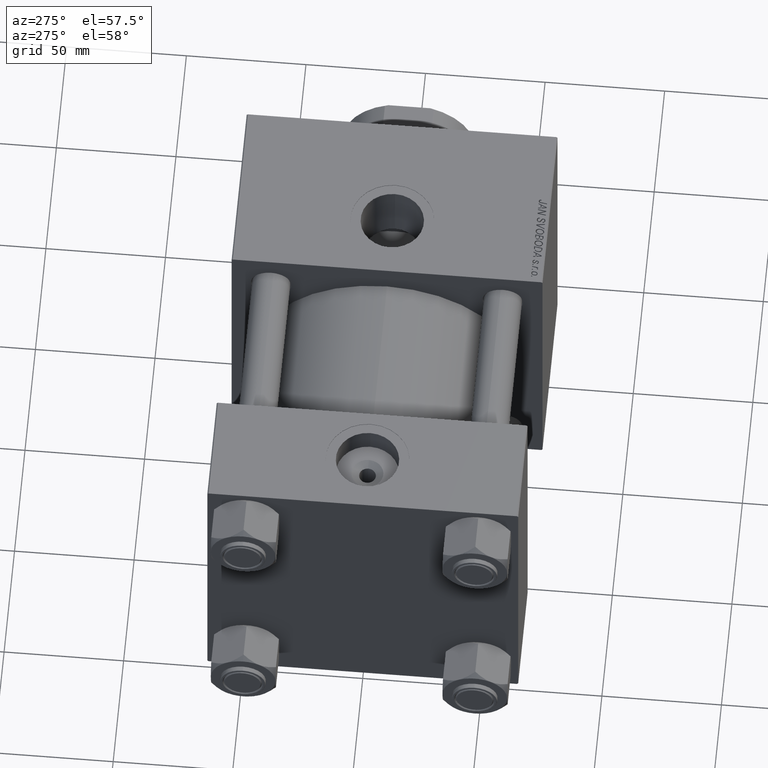
[diagram: clean part render]
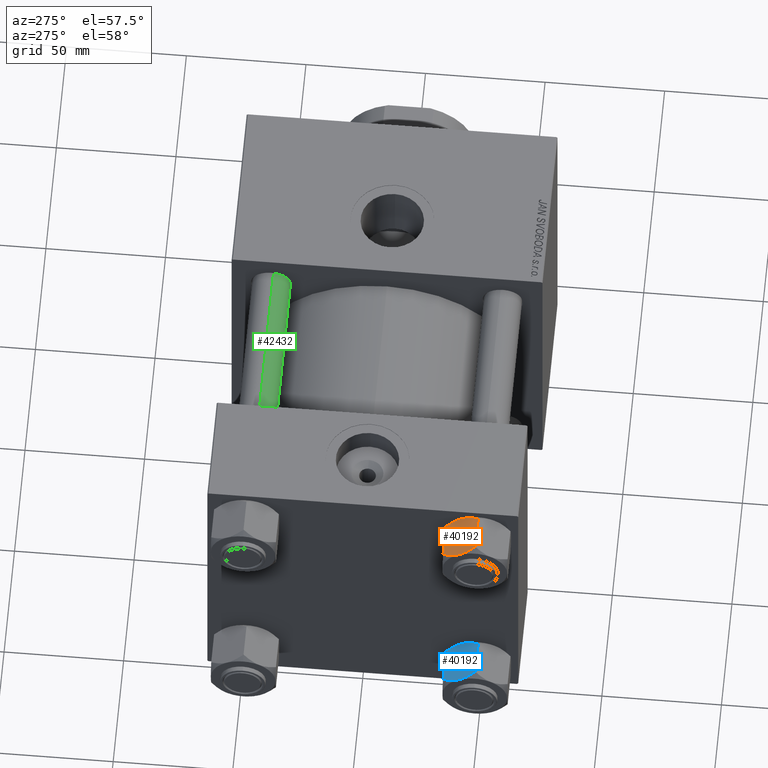
[diagram: same view with three faces highlighted in distinct colors, each labeled with its STEP entity id]
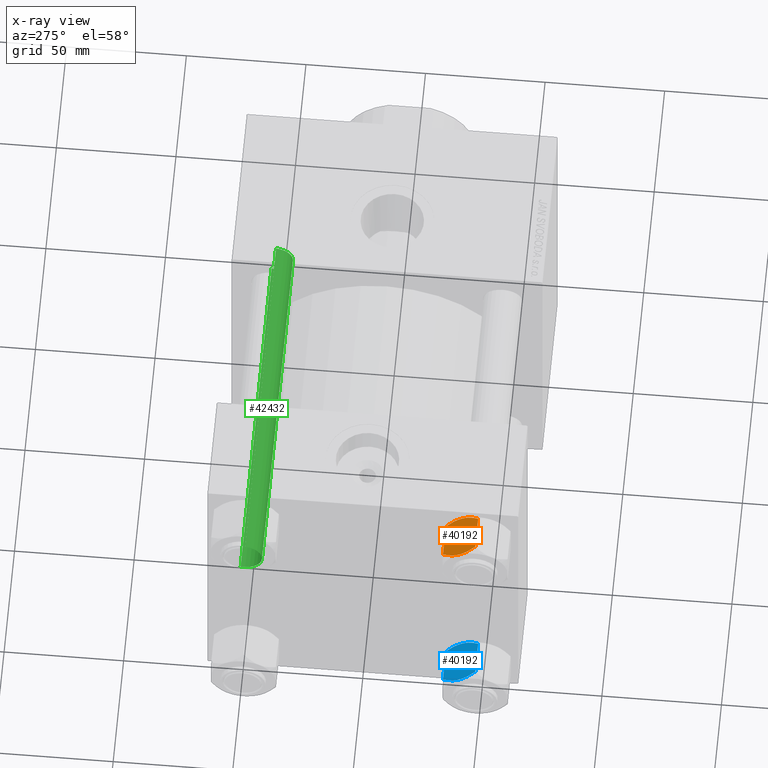
[diagram: x-ray of the same camera — body ghosted, the three highlighted faces saturated]
A machine part, auxiliary view with three faces highlighted in distinct colors.
The next image is the same camera in x-ray (body ghosted, the three faces saturated) — at least one of them is partly hidden behind the body in this view.
Their STEP definitions:

[orange] entity #40192 — the highlighted planar face has unit normal (-0, -0.5, -0.866).
#537 = DIRECTION ( 'NONE',  ( 0.4999999999999994449, -0.8660254037844390407, 0.000000000000000000 ) ) ;
#846 = EDGE_CURVE ( 'NONE', #49094, #23550, #19494, .T. ) ;
#1621 = B_SPLINE_CURVE_WITH_KNOTS ( 'NONE', 3,
 ( #35113, #43847, #47704, #38976, #35634, #47438, #19736, #20244 ),
 .UNSPECIFIED., .F., .F.,
 ( 4, 2, 2, 4 ),
 ( 0.007890825462474411814, 0.01181022244528552416, 0.01376992093669107860, 0.01572961942809663477 ),
 .UNSPECIFIED. ) ;
#1979 = ORIENTED_EDGE ( 'NONE', *, *, #33604, .F. ) ;
#2148 = CARTESIAN_POINT ( 'NONE',  ( -10.40215497533437805, -9.037572688741340343, -0.1971866459924474513 ) ) ;
#2179 = CARTESIAN_POINT ( 'NONE',  ( -11.71500000000000874, -6.763658403556459753, 0.000000000000000000 ) ) ;
#2950 = CARTESIAN_POINT ( 'NONE',  ( -7.903528262322684128, -13.36532110482641400, -16.00000000000000000 ) ) ;
#3744 = EDGE_CURVE ( 'NONE', #47865, #6500, #18803, .T. ) ;
#4026 = DIRECTION ( 'NONE',  ( 0.8660254037844390407, 0.4999999999999994449, 0.000000000000000000 ) ) ;
#4099 = DIRECTION ( 'NONE',  ( -0.4999999999999994449, 0.8660254037844390407, 0.000000000000000000 ) ) ;
#4546 = CARTESIAN_POINT ( 'NONE',  ( -7.809999999999999609, -13.52731680711293727, -18.00000000000000000 ) ) ;
#5118 = CARTESIAN_POINT ( 'NONE',  ( -15.61999999999999567, 8.023367828467702033E-15, -1.999999999999998224 ) ) ;
#5462 = CARTESIAN_POINT ( 'NONE',  ( -11.38181071908714515, -7.340759166634855504, -17.99999999999998934 ) ) ;
#6025 = CARTESIAN_POINT ( 'NONE',  ( -14.31545111198821552, -2.259544954993873311, -0.9142282604026915616 ) ) ;
#6079 = CARTESIAN_POINT ( 'NONE',  ( -7.809999999999999609, -13.52731680711293727, -16.00000000000000000 ) ) ;
#6268 = EDGE_CURVE ( 'NONE', #46447, #21157, #21612, .T. ) ;
#6500 = VERTEX_POINT ( 'NONE', #13372 ) ;
#6749 = CARTESIAN_POINT ( 'NONE',  ( -11.71500000000000874, -6.763658403556459753, 0.000000000000000000 ) ) ;
#7506 = DIRECTION ( 'NONE',  ( -0.000000000000000000, -0.000000000000000000, 1.000000000000000000 ) ) ;
#7761 = CARTESIAN_POINT ( 'NONE',  ( -8.202637790192643052, -12.84724820552771085, -1.706311779141444829 ) ) ;
#8373 = VECTOR ( 'NONE', #27476, 999.9999999999998863 ) ;
#9622 = CARTESIAN_POINT ( 'NONE',  ( -13.36540581434588226, -3.905071680002305534, -0.3836066851120543686 ) ) ;
#9625 = CARTESIAN_POINT ( 'NONE',  ( -15.61999999999999567, 8.023367828467702033E-15, -18.00000000000000000 ) ) ;
#10125 = CARTESIAN_POINT ( 'NONE',  ( -12.38621571200405391, -5.601078687526916511, -0.05089381635300645190 ) ) ;
#10126 = CARTESIAN_POINT ( 'NONE',  ( -15.61999999999999567, 8.023367828467702033E-15, -16.00000000000000000 ) ) ;
#10353 = VERTEX_POINT ( 'NONE', #10676 ) ;
#10676 = CARTESIAN_POINT ( 'NONE',  ( -11.71499999999999986, -6.763658403556454424, -18.00000000000000000 ) ) ;
#12332 = VERTEX_POINT ( 'NONE', #2950 ) ;
#12594 = LINE ( 'NONE', #35680, #18323 ) ;
#13372 = CARTESIAN_POINT ( 'NONE',  ( -7.809999999999999609, -13.52731680711293727, -1.999999999999998224 ) ) ;
#15117 = ORIENTED_EDGE ( 'NONE', *, *, #27372, .F. ) ;
#17274 = CARTESIAN_POINT ( 'NONE',  ( -11.04378428799595291, -7.926238119585994113, -17.94910618364698252 ) ) ;
#17466 = EDGE_CURVE ( 'NONE', #41054, #46447, #28473, .T. ) ;
#17562 = CARTESIAN_POINT ( 'NONE',  ( -9.439480280627259745, -10.70497417113492311, -0.7317196846281081024 ) ) ;
#17767 = CARTESIAN_POINT ( 'NONE',  ( -11.71499999999999986, -6.763658403556454424, -18.00000000000000000 ) ) ;
#18025 = B_SPLINE_CURVE_WITH_KNOTS ( 'NONE', 3,
 ( #40862, #28818, #48815, #25207, #45223, #17274, #5462, #17767 ),
 .UNSPECIFIED., .F., .F.,
 ( 4, 2, 2, 4 ),
 ( 4.472842641823326580E-07, 0.003945636373369299649, 0.005918230917921855731, 0.007890825462474411814 ),
 .UNSPECIFIED. ) ;
#18323 = VECTOR ( 'NONE', #537, 999.9999999999998863 ) ;
#18466 = ORIENTED_EDGE ( 'NONE', *, *, #846, .F. ) ;
#18803 = LINE ( 'NONE', #26508, #38472 ) ;
#19494 = LINE ( 'NONE', #42331, #25321 ) ;
#19641 = B_SPLINE_CURVE_WITH_KNOTS ( 'NONE', 3,
 ( #6749, #37055, #2148, #17562, #33195, #27293, #7761, #46524 ),
 .UNSPECIFIED., .F., .F.,
 ( 4, 2, 2, 4 ),
 ( 0.007890825462474451713, 0.01181022244528557794, 0.01376992093669113758, 0.01572961942809669722 ),
 .UNSPECIFIED. ) ;
#19681 = FACE_OUTER_BOUND ( 'NONE', #50242, .T. ) ;
#19709 = ORIENTED_EDGE ( 'NONE', *, *, #46373, .F. ) ;
#19736 = CARTESIAN_POINT ( 'NONE',  ( -15.22736220980735489, -0.6800686015852174249, -16.29368822085854873 ) ) ;
#19909 = LINE ( 'NONE', #28607, #45104 ) ;
#19969 = ORIENTED_EDGE ( 'NONE', *, *, #6268, .F. ) ;
#20244 = CARTESIAN_POINT ( 'NONE',  ( -15.52647173767731914, -0.1619957022864979002, -16.00000000000000000 ) ) ;
#21157 = VERTEX_POINT ( 'NONE', #21711 ) ;
#21506 = ORIENTED_EDGE ( 'NONE', *, *, #27924, .F. ) ;
#21612 = B_SPLINE_CURVE_WITH_KNOTS ( 'NONE', 3,
 ( #29875, #41187, #6025, #9622, #45535, #10125, #25275, #2179 ),
 .UNSPECIFIED., .F., .F.,
 ( 4, 2, 2, 4 ),
 ( 4.472842641982724416E-07, 0.003945636373369324802, 0.005918230917921887824, 0.007890825462474451713 ),
 .UNSPECIFIED. ) ;
#21677 = VECTOR ( 'NONE', #49388, 1000.000000000000000 ) ;
#21711 = CARTESIAN_POINT ( 'NONE',  ( -11.71500000000000874, -6.763658403556459753, 0.000000000000000000 ) ) ;
#23512 = PLANE ( 'NONE',  #26107 ) ;
#23550 = VERTEX_POINT ( 'NONE', #10126 ) ;
#24495 = CARTESIAN_POINT ( 'NONE',  ( -15.52647173767732980, -0.1619957022864788043, -2.000000000000000000 ) ) ;
#24760 = DIRECTION ( 'NONE',  ( -0.4999999999999994449, 0.8660254037844390407, 0.000000000000000000 ) ) ;
#24891 = EDGE_CURVE ( 'NONE', #32015, #6500, #12594, .T. ) ;
#25207 = CARTESIAN_POINT ( 'NONE',  ( -10.06459418565413166, -9.622245127110597096, -17.61639331488793303 ) ) ;
#25275 = CARTESIAN_POINT ( 'NONE',  ( -12.04818928091285635, -6.186557640478051567, 9.103910117089220044E-15 ) ) ;
#25321 = VECTOR ( 'NONE', #4099, 999.9999999999998863 ) ;
#26107 = AXIS2_PLACEMENT_3D ( 'NONE', #4546, #4026, #46892 ) ;
#26508 = CARTESIAN_POINT ( 'NONE',  ( -7.809999999999999609, -13.52731680711293727, -18.00000000000000000 ) ) ;
#26952 = ORIENTED_EDGE ( 'NONE', *, *, #3744, .T. ) ;
#27293 = CARTESIAN_POINT ( 'NONE',  ( -8.506059550806618574, -12.32170630002230816, -1.434462921875002461 ) ) ;
#27372 = EDGE_CURVE ( 'NONE', #23550, #41054, #32989, .T. ) ;
#27476 = DIRECTION ( 'NONE',  ( 0.4999999999999994449, -0.8660254037844390407, 0.000000000000000000 ) ) ;
#27924 = EDGE_CURVE ( 'NONE', #21157, #32015, #19641, .T. ) ;
#28473 = LINE ( 'NONE', #47981, #8373 ) ;
#28607 = CARTESIAN_POINT ( 'NONE',  ( -7.809999999999999609, -13.52731680711293727, -16.00000000000000000 ) ) ;
#28626 = ORIENTED_EDGE ( 'NONE', *, *, #17466, .F. ) ;
#28818 = CARTESIAN_POINT ( 'NONE',  ( -8.502393313253762130, -12.32805640973646710, -16.58801072835992585 ) ) ;
#29875 = CARTESIAN_POINT ( 'NONE',  ( -15.52647173767732980, -0.1619957022864788043, -2.000000000000000000 ) ) ;
#30431 = CARTESIAN_POINT ( 'NONE',  ( -7.903528262322674358, -13.36532110482643354, -2.000000000000000000 ) ) ;
#32015 = VERTEX_POINT ( 'NONE', #30431 ) ;
#32921 = CARTESIAN_POINT ( 'NONE',  ( -15.52647173767731914, -0.1619957022864979002, -16.00000000000000000 ) ) ;
#32989 = LINE ( 'NONE', #9625, #21677 ) ;
#33195 = CARTESIAN_POINT ( 'NONE',  ( -9.124083218049237942, -11.25125790807803838, -0.9473872146228101698 ) ) ;
#33604 = EDGE_CURVE ( 'NONE', #10353, #49094, #1621, .T. ) ;
#34006 = ORIENTED_EDGE ( 'NONE', *, *, #48389, .F. ) ;
#35113 = CARTESIAN_POINT ( 'NONE',  ( -11.71499999999999986, -6.763658403556454424, -18.00000000000000000 ) ) ;
#35634 = CARTESIAN_POINT ( 'NONE',  ( -14.30591678195075467, -2.276058899034888672, -17.05261278537718539 ) ) ;
#35680 = CARTESIAN_POINT ( 'NONE',  ( -7.809999999999999609, -13.52731680711293727, -1.999999999999998224 ) ) ;
#37055 = CARTESIAN_POINT ( 'NONE',  ( -11.05297796109637787, -7.910314210667872103, 9.086969458144130882E-15 ) ) ;
#38472 = VECTOR ( 'NONE', #7506, 1000.000000000000000 ) ;
#38976 = CARTESIAN_POINT ( 'NONE',  ( -13.99051971937273464, -2.822342635978000391, -17.26828031537188224 ) ) ;
#40192 = ADVANCED_FACE ( 'NONE', ( #19681 ), #23512, .F. ) ;
#40862 = CARTESIAN_POINT ( 'NONE',  ( -7.903528262322684128, -13.36532110482641400, -16.00000000000000000 ) ) ;
#41054 = VERTEX_POINT ( 'NONE', #5118 ) ;
#41187 = CARTESIAN_POINT ( 'NONE',  ( -14.92760668674625002, -1.199260397376427090, -1.411989271640064825 ) ) ;
#42331 = CARTESIAN_POINT ( 'NONE',  ( -7.809999999999999609, -13.52731680711293727, -16.00000000000000000 ) ) ;
#42882 = ORIENTED_EDGE ( 'NONE', *, *, #24891, .F. ) ;
#43847 = CARTESIAN_POINT ( 'NONE',  ( -12.37702203890362362, -5.617002596445043849, -17.99999999999999645 ) ) ;
#45104 = VECTOR ( 'NONE', #24760, 999.9999999999998863 ) ;
#45223 = CARTESIAN_POINT ( 'NONE',  ( -10.38662926516872709, -9.064464007571841009, -17.75691532989870325 ) ) ;
#45535 = CARTESIAN_POINT ( 'NONE',  ( -13.04337073483128329, -4.462852799541069615, -0.2430846701012900901 ) ) ;
#46373 = EDGE_CURVE ( 'NONE', #47865, #12332, #19909, .T. ) ;
#46447 = VERTEX_POINT ( 'NONE', #24495 ) ;
#46524 = CARTESIAN_POINT ( 'NONE',  ( -7.903528262322674358, -13.36532110482643354, -2.000000000000000000 ) ) ;
#46892 = DIRECTION ( 'NONE',  ( -0.4999999999999993894, 0.8660254037844389297, 0.000000000000000000 ) ) ;
#47438 = CARTESIAN_POINT ( 'NONE',  ( -14.92394044919338292, -1.205610507090625561, -16.56553707812498999 ) ) ;
#47704 = CARTESIAN_POINT ( 'NONE',  ( -13.02784502466562699, -4.489744118371577386, -17.80281335400754017 ) ) ;
#47865 = VERTEX_POINT ( 'NONE', #6079 ) ;
#47981 = CARTESIAN_POINT ( 'NONE',  ( -7.809999999999999609, -13.52731680711293727, -1.999999999999998224 ) ) ;
#48389 = EDGE_CURVE ( 'NONE', #12332, #10353, #18025, .T. ) ;
#48815 = CARTESIAN_POINT ( 'NONE',  ( -9.114548888011793082, -11.26777185211902399, -17.08577173959729834 ) ) ;
#49094 = VERTEX_POINT ( 'NONE', #32921 ) ;
#49388 = DIRECTION ( 'NONE',  ( -0.000000000000000000, -0.000000000000000000, 1.000000000000000000 ) ) ;
#50242 = EDGE_LOOP ( 'NONE', ( #19709, #26952, #42882, #21506, #19969, #28626, #15117, #18466, #1979, #34006 ) ) ;

[blue] entity #40192 — the highlighted planar face has unit normal (-0, -0.5, -0.866).
#537 = DIRECTION ( 'NONE',  ( 0.4999999999999994449, -0.8660254037844390407, 0.000000000000000000 ) ) ;
#846 = EDGE_CURVE ( 'NONE', #49094, #23550, #19494, .T. ) ;
#1621 = B_SPLINE_CURVE_WITH_KNOTS ( 'NONE', 3,
 ( #35113, #43847, #47704, #38976, #35634, #47438, #19736, #20244 ),
 .UNSPECIFIED., .F., .F.,
 ( 4, 2, 2, 4 ),
 ( 0.007890825462474411814, 0.01181022244528552416, 0.01376992093669107860, 0.01572961942809663477 ),
 .UNSPECIFIED. ) ;
#1979 = ORIENTED_EDGE ( 'NONE', *, *, #33604, .F. ) ;
#2148 = CARTESIAN_POINT ( 'NONE',  ( -10.40215497533437805, -9.037572688741340343, -0.1971866459924474513 ) ) ;
#2179 = CARTESIAN_POINT ( 'NONE',  ( -11.71500000000000874, -6.763658403556459753, 0.000000000000000000 ) ) ;
#2950 = CARTESIAN_POINT ( 'NONE',  ( -7.903528262322684128, -13.36532110482641400, -16.00000000000000000 ) ) ;
#3744 = EDGE_CURVE ( 'NONE', #47865, #6500, #18803, .T. ) ;
#4026 = DIRECTION ( 'NONE',  ( 0.8660254037844390407, 0.4999999999999994449, 0.000000000000000000 ) ) ;
#4099 = DIRECTION ( 'NONE',  ( -0.4999999999999994449, 0.8660254037844390407, 0.000000000000000000 ) ) ;
#4546 = CARTESIAN_POINT ( 'NONE',  ( -7.809999999999999609, -13.52731680711293727, -18.00000000000000000 ) ) ;
#5118 = CARTESIAN_POINT ( 'NONE',  ( -15.61999999999999567, 8.023367828467702033E-15, -1.999999999999998224 ) ) ;
#5462 = CARTESIAN_POINT ( 'NONE',  ( -11.38181071908714515, -7.340759166634855504, -17.99999999999998934 ) ) ;
#6025 = CARTESIAN_POINT ( 'NONE',  ( -14.31545111198821552, -2.259544954993873311, -0.9142282604026915616 ) ) ;
#6079 = CARTESIAN_POINT ( 'NONE',  ( -7.809999999999999609, -13.52731680711293727, -16.00000000000000000 ) ) ;
#6268 = EDGE_CURVE ( 'NONE', #46447, #21157, #21612, .T. ) ;
#6500 = VERTEX_POINT ( 'NONE', #13372 ) ;
#6749 = CARTESIAN_POINT ( 'NONE',  ( -11.71500000000000874, -6.763658403556459753, 0.000000000000000000 ) ) ;
#7506 = DIRECTION ( 'NONE',  ( -0.000000000000000000, -0.000000000000000000, 1.000000000000000000 ) ) ;
#7761 = CARTESIAN_POINT ( 'NONE',  ( -8.202637790192643052, -12.84724820552771085, -1.706311779141444829 ) ) ;
#8373 = VECTOR ( 'NONE', #27476, 999.9999999999998863 ) ;
#9622 = CARTESIAN_POINT ( 'NONE',  ( -13.36540581434588226, -3.905071680002305534, -0.3836066851120543686 ) ) ;
#9625 = CARTESIAN_POINT ( 'NONE',  ( -15.61999999999999567, 8.023367828467702033E-15, -18.00000000000000000 ) ) ;
#10125 = CARTESIAN_POINT ( 'NONE',  ( -12.38621571200405391, -5.601078687526916511, -0.05089381635300645190 ) ) ;
#10126 = CARTESIAN_POINT ( 'NONE',  ( -15.61999999999999567, 8.023367828467702033E-15, -16.00000000000000000 ) ) ;
#10353 = VERTEX_POINT ( 'NONE', #10676 ) ;
#10676 = CARTESIAN_POINT ( 'NONE',  ( -11.71499999999999986, -6.763658403556454424, -18.00000000000000000 ) ) ;
#12332 = VERTEX_POINT ( 'NONE', #2950 ) ;
#12594 = LINE ( 'NONE', #35680, #18323 ) ;
#13372 = CARTESIAN_POINT ( 'NONE',  ( -7.809999999999999609, -13.52731680711293727, -1.999999999999998224 ) ) ;
#15117 = ORIENTED_EDGE ( 'NONE', *, *, #27372, .F. ) ;
#17274 = CARTESIAN_POINT ( 'NONE',  ( -11.04378428799595291, -7.926238119585994113, -17.94910618364698252 ) ) ;
#17466 = EDGE_CURVE ( 'NONE', #41054, #46447, #28473, .T. ) ;
#17562 = CARTESIAN_POINT ( 'NONE',  ( -9.439480280627259745, -10.70497417113492311, -0.7317196846281081024 ) ) ;
#17767 = CARTESIAN_POINT ( 'NONE',  ( -11.71499999999999986, -6.763658403556454424, -18.00000000000000000 ) ) ;
#18025 = B_SPLINE_CURVE_WITH_KNOTS ( 'NONE', 3,
 ( #40862, #28818, #48815, #25207, #45223, #17274, #5462, #17767 ),
 .UNSPECIFIED., .F., .F.,
 ( 4, 2, 2, 4 ),
 ( 4.472842641823326580E-07, 0.003945636373369299649, 0.005918230917921855731, 0.007890825462474411814 ),
 .UNSPECIFIED. ) ;
#18323 = VECTOR ( 'NONE', #537, 999.9999999999998863 ) ;
#18466 = ORIENTED_EDGE ( 'NONE', *, *, #846, .F. ) ;
#18803 = LINE ( 'NONE', #26508, #38472 ) ;
#19494 = LINE ( 'NONE', #42331, #25321 ) ;
#19641 = B_SPLINE_CURVE_WITH_KNOTS ( 'NONE', 3,
 ( #6749, #37055, #2148, #17562, #33195, #27293, #7761, #46524 ),
 .UNSPECIFIED., .F., .F.,
 ( 4, 2, 2, 4 ),
 ( 0.007890825462474451713, 0.01181022244528557794, 0.01376992093669113758, 0.01572961942809669722 ),
 .UNSPECIFIED. ) ;
#19681 = FACE_OUTER_BOUND ( 'NONE', #50242, .T. ) ;
#19709 = ORIENTED_EDGE ( 'NONE', *, *, #46373, .F. ) ;
#19736 = CARTESIAN_POINT ( 'NONE',  ( -15.22736220980735489, -0.6800686015852174249, -16.29368822085854873 ) ) ;
#19909 = LINE ( 'NONE', #28607, #45104 ) ;
#19969 = ORIENTED_EDGE ( 'NONE', *, *, #6268, .F. ) ;
#20244 = CARTESIAN_POINT ( 'NONE',  ( -15.52647173767731914, -0.1619957022864979002, -16.00000000000000000 ) ) ;
#21157 = VERTEX_POINT ( 'NONE', #21711 ) ;
#21506 = ORIENTED_EDGE ( 'NONE', *, *, #27924, .F. ) ;
#21612 = B_SPLINE_CURVE_WITH_KNOTS ( 'NONE', 3,
 ( #29875, #41187, #6025, #9622, #45535, #10125, #25275, #2179 ),
 .UNSPECIFIED., .F., .F.,
 ( 4, 2, 2, 4 ),
 ( 4.472842641982724416E-07, 0.003945636373369324802, 0.005918230917921887824, 0.007890825462474451713 ),
 .UNSPECIFIED. ) ;
#21677 = VECTOR ( 'NONE', #49388, 1000.000000000000000 ) ;
#21711 = CARTESIAN_POINT ( 'NONE',  ( -11.71500000000000874, -6.763658403556459753, 0.000000000000000000 ) ) ;
#23512 = PLANE ( 'NONE',  #26107 ) ;
#23550 = VERTEX_POINT ( 'NONE', #10126 ) ;
#24495 = CARTESIAN_POINT ( 'NONE',  ( -15.52647173767732980, -0.1619957022864788043, -2.000000000000000000 ) ) ;
#24760 = DIRECTION ( 'NONE',  ( -0.4999999999999994449, 0.8660254037844390407, 0.000000000000000000 ) ) ;
#24891 = EDGE_CURVE ( 'NONE', #32015, #6500, #12594, .T. ) ;
#25207 = CARTESIAN_POINT ( 'NONE',  ( -10.06459418565413166, -9.622245127110597096, -17.61639331488793303 ) ) ;
#25275 = CARTESIAN_POINT ( 'NONE',  ( -12.04818928091285635, -6.186557640478051567, 9.103910117089220044E-15 ) ) ;
#25321 = VECTOR ( 'NONE', #4099, 999.9999999999998863 ) ;
#26107 = AXIS2_PLACEMENT_3D ( 'NONE', #4546, #4026, #46892 ) ;
#26508 = CARTESIAN_POINT ( 'NONE',  ( -7.809999999999999609, -13.52731680711293727, -18.00000000000000000 ) ) ;
#26952 = ORIENTED_EDGE ( 'NONE', *, *, #3744, .T. ) ;
#27293 = CARTESIAN_POINT ( 'NONE',  ( -8.506059550806618574, -12.32170630002230816, -1.434462921875002461 ) ) ;
#27372 = EDGE_CURVE ( 'NONE', #23550, #41054, #32989, .T. ) ;
#27476 = DIRECTION ( 'NONE',  ( 0.4999999999999994449, -0.8660254037844390407, 0.000000000000000000 ) ) ;
#27924 = EDGE_CURVE ( 'NONE', #21157, #32015, #19641, .T. ) ;
#28473 = LINE ( 'NONE', #47981, #8373 ) ;
#28607 = CARTESIAN_POINT ( 'NONE',  ( -7.809999999999999609, -13.52731680711293727, -16.00000000000000000 ) ) ;
#28626 = ORIENTED_EDGE ( 'NONE', *, *, #17466, .F. ) ;
#28818 = CARTESIAN_POINT ( 'NONE',  ( -8.502393313253762130, -12.32805640973646710, -16.58801072835992585 ) ) ;
#29875 = CARTESIAN_POINT ( 'NONE',  ( -15.52647173767732980, -0.1619957022864788043, -2.000000000000000000 ) ) ;
#30431 = CARTESIAN_POINT ( 'NONE',  ( -7.903528262322674358, -13.36532110482643354, -2.000000000000000000 ) ) ;
#32015 = VERTEX_POINT ( 'NONE', #30431 ) ;
#32921 = CARTESIAN_POINT ( 'NONE',  ( -15.52647173767731914, -0.1619957022864979002, -16.00000000000000000 ) ) ;
#32989 = LINE ( 'NONE', #9625, #21677 ) ;
#33195 = CARTESIAN_POINT ( 'NONE',  ( -9.124083218049237942, -11.25125790807803838, -0.9473872146228101698 ) ) ;
#33604 = EDGE_CURVE ( 'NONE', #10353, #49094, #1621, .T. ) ;
#34006 = ORIENTED_EDGE ( 'NONE', *, *, #48389, .F. ) ;
#35113 = CARTESIAN_POINT ( 'NONE',  ( -11.71499999999999986, -6.763658403556454424, -18.00000000000000000 ) ) ;
#35634 = CARTESIAN_POINT ( 'NONE',  ( -14.30591678195075467, -2.276058899034888672, -17.05261278537718539 ) ) ;
#35680 = CARTESIAN_POINT ( 'NONE',  ( -7.809999999999999609, -13.52731680711293727, -1.999999999999998224 ) ) ;
#37055 = CARTESIAN_POINT ( 'NONE',  ( -11.05297796109637787, -7.910314210667872103, 9.086969458144130882E-15 ) ) ;
#38472 = VECTOR ( 'NONE', #7506, 1000.000000000000000 ) ;
#38976 = CARTESIAN_POINT ( 'NONE',  ( -13.99051971937273464, -2.822342635978000391, -17.26828031537188224 ) ) ;
#40192 = ADVANCED_FACE ( 'NONE', ( #19681 ), #23512, .F. ) ;
#40862 = CARTESIAN_POINT ( 'NONE',  ( -7.903528262322684128, -13.36532110482641400, -16.00000000000000000 ) ) ;
#41054 = VERTEX_POINT ( 'NONE', #5118 ) ;
#41187 = CARTESIAN_POINT ( 'NONE',  ( -14.92760668674625002, -1.199260397376427090, -1.411989271640064825 ) ) ;
#42331 = CARTESIAN_POINT ( 'NONE',  ( -7.809999999999999609, -13.52731680711293727, -16.00000000000000000 ) ) ;
#42882 = ORIENTED_EDGE ( 'NONE', *, *, #24891, .F. ) ;
#43847 = CARTESIAN_POINT ( 'NONE',  ( -12.37702203890362362, -5.617002596445043849, -17.99999999999999645 ) ) ;
#45104 = VECTOR ( 'NONE', #24760, 999.9999999999998863 ) ;
#45223 = CARTESIAN_POINT ( 'NONE',  ( -10.38662926516872709, -9.064464007571841009, -17.75691532989870325 ) ) ;
#45535 = CARTESIAN_POINT ( 'NONE',  ( -13.04337073483128329, -4.462852799541069615, -0.2430846701012900901 ) ) ;
#46373 = EDGE_CURVE ( 'NONE', #47865, #12332, #19909, .T. ) ;
#46447 = VERTEX_POINT ( 'NONE', #24495 ) ;
#46524 = CARTESIAN_POINT ( 'NONE',  ( -7.903528262322674358, -13.36532110482643354, -2.000000000000000000 ) ) ;
#46892 = DIRECTION ( 'NONE',  ( -0.4999999999999993894, 0.8660254037844389297, 0.000000000000000000 ) ) ;
#47438 = CARTESIAN_POINT ( 'NONE',  ( -14.92394044919338292, -1.205610507090625561, -16.56553707812498999 ) ) ;
#47704 = CARTESIAN_POINT ( 'NONE',  ( -13.02784502466562699, -4.489744118371577386, -17.80281335400754017 ) ) ;
#47865 = VERTEX_POINT ( 'NONE', #6079 ) ;
#47981 = CARTESIAN_POINT ( 'NONE',  ( -7.809999999999999609, -13.52731680711293727, -1.999999999999998224 ) ) ;
#48389 = EDGE_CURVE ( 'NONE', #12332, #10353, #18025, .T. ) ;
#48815 = CARTESIAN_POINT ( 'NONE',  ( -9.114548888011793082, -11.26777185211902399, -17.08577173959729834 ) ) ;
#49094 = VERTEX_POINT ( 'NONE', #32921 ) ;
#49388 = DIRECTION ( 'NONE',  ( -0.000000000000000000, -0.000000000000000000, 1.000000000000000000 ) ) ;
#50242 = EDGE_LOOP ( 'NONE', ( #19709, #26952, #42882, #21506, #19969, #28626, #15117, #18466, #1979, #34006 ) ) ;

[green] entity #42432 — the highlighted cylindrical surface (edge-blend (fillet) strip) has radius 8 mm, axis along (-1, 0, 0).
#522 = CARTESIAN_POINT ( 'NONE',  ( -8.000000000000000000, 0.000000000000000000, 149.0000000000000000 ) ) ;
#645 = DIRECTION ( 'NONE',  ( -1.000000000000000000, 0.000000000000000000, 0.000000000000000000 ) ) ;
#881 = CARTESIAN_POINT ( 'NONE',  ( -8.000000000000000000, 0.000000000000000000, 0.5000000000000281997 ) ) ;
#1410 = EDGE_CURVE ( 'NONE', #25016, #10024, #21217, .T. ) ;
#3569 = CARTESIAN_POINT ( 'NONE',  ( -8.000000000000000000, 0.000000000000000000, 148.5000000000000000 ) ) ;
#3646 = CARTESIAN_POINT ( 'NONE',  ( 8.000000000000000000, 9.797174393178825657E-16, 0.5000000000000281997 ) ) ;
#6792 = DIRECTION ( 'NONE',  ( 1.000000000000000000, 0.000000000000000000, 0.000000000000000000 ) ) ;
#9344 = CARTESIAN_POINT ( 'NONE',  ( 0.000000000000000000, 0.000000000000000000, 0.5000000000000281997 ) ) ;
#10024 = VERTEX_POINT ( 'NONE', #3569 ) ;
#11630 = ORIENTED_EDGE ( 'NONE', *, *, #30671, .T. ) ;
#11925 = CARTESIAN_POINT ( 'NONE',  ( 0.000000000000000000, 0.000000000000000000, 148.5000000000000000 ) ) ;
#12456 = DIRECTION ( 'NONE',  ( 1.000000000000000000, 0.000000000000000000, 0.000000000000000000 ) ) ;
#14391 = AXIS2_PLACEMENT_3D ( 'NONE', #9344, #36050, #12456 ) ;
#14934 = VECTOR ( 'NONE', #16436, 1000.000000000000000 ) ;
#15355 = ORIENTED_EDGE ( 'NONE', *, *, #25760, .F. ) ;
#15501 = AXIS2_PLACEMENT_3D ( 'NONE', #28112, #39648, #645 ) ;
#15760 = CARTESIAN_POINT ( 'NONE',  ( 8.000000000000000000, 9.797174393178825657E-16, 149.0000000000000000 ) ) ;
#16436 = DIRECTION ( 'NONE',  ( -0.000000000000000000, -0.000000000000000000, -1.000000000000000000 ) ) ;
#16691 = LINE ( 'NONE', #522, #14934 ) ;
#17487 = EDGE_CURVE ( 'NONE', #10024, #37680, #16691, .T. ) ;
#18690 = ORIENTED_EDGE ( 'NONE', *, *, #17487, .T. ) ;
#19899 = CYLINDRICAL_SURFACE ( 'NONE', #15501, 8.000000000000000000 ) ;
#21217 = CIRCLE ( 'NONE', #33469, 8.000000000000000000 ) ;
#25016 = VERTEX_POINT ( 'NONE', #50257 ) ;
#25760 = EDGE_CURVE ( 'NONE', #25016, #38709, #31903, .T. ) ;
#28112 = CARTESIAN_POINT ( 'NONE',  ( 0.000000000000000000, 0.000000000000000000, 149.0000000000000000 ) ) ;
#30671 = EDGE_CURVE ( 'NONE', #37680, #38709, #48829, .T. ) ;
#31799 = ORIENTED_EDGE ( 'NONE', *, *, #1410, .T. ) ;
#31903 = LINE ( 'NONE', #15760, #38024 ) ;
#33469 = AXIS2_PLACEMENT_3D ( 'NONE', #11925, #42454, #6792 ) ;
#36050 = DIRECTION ( 'NONE',  ( -0.000000000000000000, -0.000000000000000000, 1.000000000000000000 ) ) ;
#37672 = EDGE_LOOP ( 'NONE', ( #15355, #31799, #18690, #11630 ) ) ;
#37680 = VERTEX_POINT ( 'NONE', #881 ) ;
#38024 = VECTOR ( 'NONE', #39351, 1000.000000000000000 ) ;
#38709 = VERTEX_POINT ( 'NONE', #3646 ) ;
#39351 = DIRECTION ( 'NONE',  ( -0.000000000000000000, -0.000000000000000000, -1.000000000000000000 ) ) ;
#39648 = DIRECTION ( 'NONE',  ( -0.000000000000000000, -0.000000000000000000, -1.000000000000000000 ) ) ;
#42432 = ADVANCED_FACE ( 'NONE', ( #42988 ), #19899, .T. ) ;
#42454 = DIRECTION ( 'NONE',  ( 0.000000000000000000, 0.000000000000000000, -1.000000000000000000 ) ) ;
#42988 = FACE_OUTER_BOUND ( 'NONE', #37672, .T. ) ;
#48829 = CIRCLE ( 'NONE', #14391, 8.000000000000000000 ) ;
#50257 = CARTESIAN_POINT ( 'NONE',  ( 8.000000000000000000, 9.797174393178825657E-16, 148.5000000000000000 ) ) ;